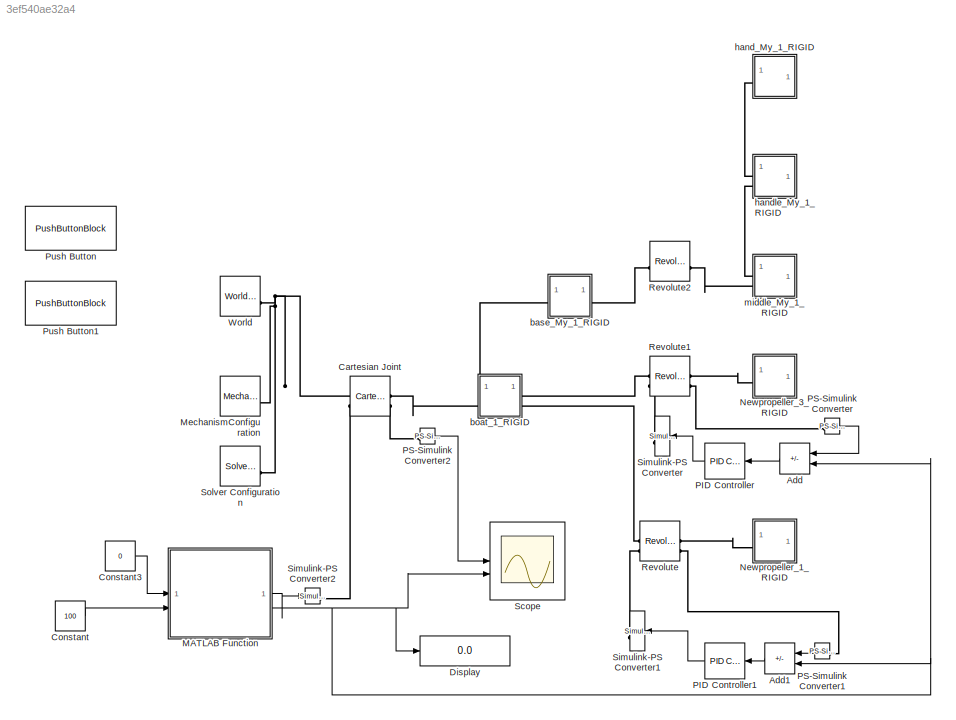
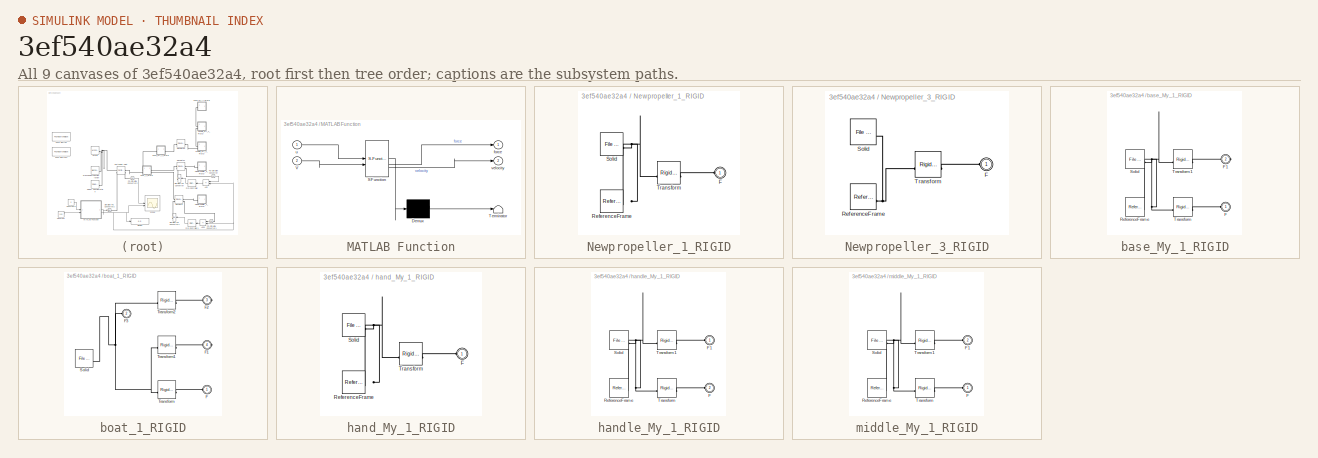
[diagram: thumbnail index - all 9 canvases of the model, root first then tree order]
MODEL slx_3ef540ae32a4
KIND model
CONFIG AbsTol = auto
CONFIG EnableMultiTasking = off
CONFIG FixedStep = auto
CONFIG MaxStep = auto
CONFIG MinStep = auto
CONFIG RelTol = 1e-3
CONFIG SampleTimeConstraint = Unconstrained
CONFIG SolverName = ode23tb
CONFIG StartTime = 0.0
CONFIG StopTime = inf
WORKSPACE source: external: MATLAB File  (data not in archive)
BLOCK [Sum] Add
  IconShape = rectangular
  Inputs = -+
BLOCK [Sum] Add1
  IconShape = rectangular
  Inputs = -+
BLOCK [Reference] Cartesian Joint  REF=sm_lib/Joints/Cartesian
Joint
  SourceBlock = sm_lib/Joints/Cartesian\nJoint
  SourceType = Cartesian\nJoint
BLOCK [Constant] Constant
  Value = 100
BLOCK [Constant] Constant3
  Value = 0
BLOCK [Display] Display
  Decimation = 1
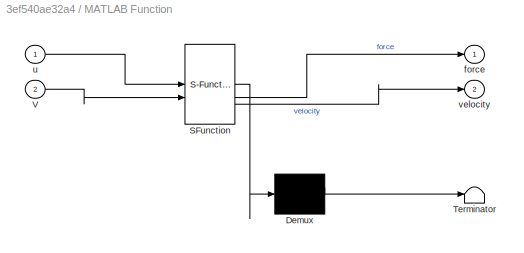
BLOCK [SubSystem] MATLAB Function
  ErrorFcn = Stateflow.Translate.translate
  LibrarySourceBlock = simulink/User-Defined\nFunctions/MATLAB Function
  PermitHierarchicalResolution = ExplicitOnly
  SFBlockType = MATLAB Function
  TreatAsAtomicUnit = on
BLOCK [Demux] MATLAB Function/ Demux 
  Outputs = 1
BLOCK [S-Function] MATLAB Function/ SFunction 
  EnableBusSupport = on
  FunctionName = sf_sfun
  PortCounts = [2 3]
  SFcnIsStateOwnerBlock = off
  SFunctionDeploymentMode = off
  Tag = Stateflow S-Function 2
BLOCK [Terminator] MATLAB Function/ Terminator 
BLOCK [Inport] MATLAB Function/V
  Port = 2
BLOCK [Outport] MATLAB Function/force
BLOCK [Inport] MATLAB Function/u
BLOCK [Outport] MATLAB Function/velocity
  Port = 2
BLOCK [Reference] MechanismConfiguration  REF=sm_lib/Utilities/Mechanism
Configuration
  SourceBlock = sm_lib/Utilities/Mechanism\nConfiguration
  SourceType = Mechanism\nConfiguration
BLOCK [SubSystem] Newpropeller_1_RIGID
BLOCK [PMIOPort] Newpropeller_1_RIGID/F
  Side = Left
BLOCK [Reference] Newpropeller_1_RIGID/ReferenceFrame  REF=sm_lib/Frames and
Transforms/Reference
Frame
  SourceBlock = sm_lib/Frames and\nTransforms/Reference\nFrame
  SourceType = Reference\nFrame
BLOCK [Reference] Newpropeller_1_RIGID/Solid  REF=sm_lib/Body Elements/File Solid
  SourceBlock = sm_lib/Body Elements/File Solid
  SourceType = File Solid
BLOCK [Reference] Newpropeller_1_RIGID/Transform  REF=sm_lib/Frames and
Transforms/Rigid
Transform
  SourceBlock = sm_lib/Frames and\nTransforms/Rigid\nTransform
  SourceType = Rigid\nTransform
BLOCK [SubSystem] Newpropeller_3_RIGID
BLOCK [PMIOPort] Newpropeller_3_RIGID/F
  Side = Left
BLOCK [Reference] Newpropeller_3_RIGID/ReferenceFrame  REF=sm_lib/Frames and
Transforms/Reference
Frame
  SourceBlock = sm_lib/Frames and\nTransforms/Reference\nFrame
  SourceType = Reference\nFrame
BLOCK [Reference] Newpropeller_3_RIGID/Solid  REF=sm_lib/Body Elements/File Solid
  SourceBlock = sm_lib/Body Elements/File Solid
  SourceType = File Solid
BLOCK [Reference] Newpropeller_3_RIGID/Transform  REF=sm_lib/Frames and
Transforms/Rigid
Transform
  SourceBlock = sm_lib/Frames and\nTransforms/Rigid\nTransform
  SourceType = Rigid\nTransform
BLOCK [Reference] PID Controller  REF=slpidlib/PID Controller
  LibrarySourceBlock = simulink/Continuous/PID Controller
  SourceBlock = slpidlib/PID Controller
  SourceType = PID 1dof
BLOCK [Reference] PID Controller1  REF=slpidlib/PID Controller
  LibrarySourceBlock = simulink/Continuous/PID Controller
  SourceBlock = slpidlib/PID Controller
  SourceType = PID 1dof
BLOCK [Reference] PS-Simulink Converter  REF=nesl_utility/PS-Simulink
Converter
  SourceBlock = nesl_utility/PS-Simulink\nConverter
  SourceType = PS-Simulink\nConverter
BLOCK [Reference] PS-Simulink Converter1  REF=nesl_utility/PS-Simulink
Converter
  SourceBlock = nesl_utility/PS-Simulink\nConverter
  SourceType = PS-Simulink\nConverter
BLOCK [Reference] PS-Simulink Converter2  REF=nesl_utility/PS-Simulink
Converter
  SourceBlock = nesl_utility/PS-Simulink\nConverter
  SourceType = PS-Simulink\nConverter
BLOCK [PushButtonBlock] Push Button
  ButtonText = front
  ButtonType = Latch
  OffValue = 1.000000
  OnValue = -1
BLOCK [PushButtonBlock] Push Button1
  ButtonText = back
  ButtonType = Latch
  OffValue = 1.000000
BLOCK [Reference] Revolute  REF=sm_lib/Joints/Revolute Joint
  SourceBlock = sm_lib/Joints/Revolute Joint
  SourceType = Revolute Joint
BLOCK [Reference] Revolute1  REF=sm_lib/Joints/Revolute Joint
  SourceBlock = sm_lib/Joints/Revolute Joint
  SourceType = Revolute Joint
BLOCK [Reference] Revolute2  REF=sm_lib/Joints/Revolute Joint
  SourceBlock = sm_lib/Joints/Revolute Joint
  SourceType = Revolute Joint
BLOCK [Scope] Scope
  Floating = off
  NumInputPorts = 2
  ScopeSpecificationString = Simulink.scopes.TimeScopeBlockCfg('CurrentConfiguration', extmgr.ConfigurationSet(extmgr.Configuration('Core','General UI',true),extmgr.Configuration('Core','Source UI',true),extmgr.Configuration('Sources','WiredSimulink',true),extmgr.Configuration('Visuals','Time Domain',true,'SerializedDisplays',{struct('MinYLimReal','-125.0267','MaxYLimReal','125.02301','YLabelReal','','MinYLimMag',' 0.00000','...<+1448ch>
BLOCK [Reference] Simulink-PS Converter  REF=nesl_utility/Simulink-PS
Converter
  SourceBlock = nesl_utility/Simulink-PS\nConverter
  SourceType = Simulink-PS\nConverter
BLOCK [Reference] Simulink-PS Converter1  REF=nesl_utility/Simulink-PS
Converter
  SourceBlock = nesl_utility/Simulink-PS\nConverter
  SourceType = Simulink-PS\nConverter
BLOCK [Reference] Simulink-PS Converter2  REF=nesl_utility/Simulink-PS
Converter
  SourceBlock = nesl_utility/Simulink-PS\nConverter
  SourceType = Simulink-PS\nConverter
BLOCK [Reference] Solver Configuration  REF=nesl_utility/Solver
Configuration
  SourceBlock = nesl_utility/Solver\nConfiguration
  SourceType = Solver\nConfiguration
BLOCK [Reference] World  REF=sm_lib/Frames and
Transforms/World Frame
  SourceBlock = sm_lib/Frames and\nTransforms/World Frame
  SourceType = World Frame
BLOCK [SubSystem] base_My_1_RIGID
BLOCK [PMIOPort] base_My_1_RIGID/F
  Side = Left
BLOCK [PMIOPort] base_My_1_RIGID/F1
  Port = 2
  Side = Right
BLOCK [Reference] base_My_1_RIGID/ReferenceFrame  REF=sm_lib/Frames and
Transforms/Reference
Frame
  SourceBlock = sm_lib/Frames and\nTransforms/Reference\nFrame
  SourceType = Reference\nFrame
BLOCK [Reference] base_My_1_RIGID/Solid  REF=sm_lib/Body Elements/File Solid
  SourceBlock = sm_lib/Body Elements/File Solid
  SourceType = File Solid
BLOCK [Reference] base_My_1_RIGID/Transform  REF=sm_lib/Frames and
Transforms/Rigid
Transform
  SourceBlock = sm_lib/Frames and\nTransforms/Rigid\nTransform
  SourceType = Rigid\nTransform
BLOCK [Reference] base_My_1_RIGID/Transform1  REF=sm_lib/Frames and
Transforms/Rigid
Transform
  SourceBlock = sm_lib/Frames and\nTransforms/Rigid\nTransform
  SourceType = Rigid\nTransform
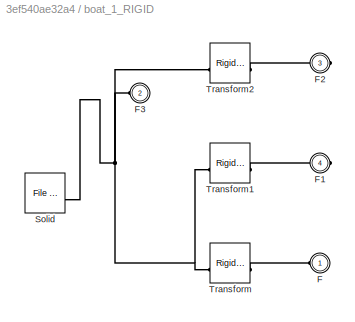
BLOCK [SubSystem] boat_1_RIGID
BLOCK [PMIOPort] boat_1_RIGID/F
  Side = Left
BLOCK [PMIOPort] boat_1_RIGID/F1
  Port = 4
  Side = Right
BLOCK [PMIOPort] boat_1_RIGID/F2
  Port = 3
  Side = Right
BLOCK [PMIOPort] boat_1_RIGID/F3
  Port = 2
  Side = Left
BLOCK [Reference] boat_1_RIGID/Solid  REF=sm_lib/Body Elements/File Solid
  SourceBlock = sm_lib/Body Elements/File Solid
  SourceType = File Solid
BLOCK [Reference] boat_1_RIGID/Transform  REF=sm_lib/Frames and
Transforms/Rigid
Transform
  SourceBlock = sm_lib/Frames and\nTransforms/Rigid\nTransform
  SourceType = Rigid\nTransform
BLOCK [Reference] boat_1_RIGID/Transform1  REF=sm_lib/Frames and
Transforms/Rigid
Transform
  SourceBlock = sm_lib/Frames and\nTransforms/Rigid\nTransform
  SourceType = Rigid\nTransform
BLOCK [Reference] boat_1_RIGID/Transform2  REF=sm_lib/Frames and
Transforms/Rigid
Transform
  SourceBlock = sm_lib/Frames and\nTransforms/Rigid\nTransform
  SourceType = Rigid\nTransform
BLOCK [SubSystem] hand_My_1_RIGID
BLOCK [PMIOPort] hand_My_1_RIGID/F
  Side = Left
BLOCK [Reference] hand_My_1_RIGID/ReferenceFrame  REF=sm_lib/Frames and
Transforms/Reference
Frame
  SourceBlock = sm_lib/Frames and\nTransforms/Reference\nFrame
  SourceType = Reference\nFrame
BLOCK [Reference] hand_My_1_RIGID/Solid  REF=sm_lib/Body Elements/File Solid
  SourceBlock = sm_lib/Body Elements/File Solid
  SourceType = File Solid
BLOCK [Reference] hand_My_1_RIGID/Transform  REF=sm_lib/Frames and
Transforms/Rigid
Transform
  SourceBlock = sm_lib/Frames and\nTransforms/Rigid\nTransform
  SourceType = Rigid\nTransform
BLOCK [SubSystem] handle_My_1_RIGID
BLOCK [PMIOPort] handle_My_1_RIGID/F
  Port = 2
  Side = Left
BLOCK [PMIOPort] handle_My_1_RIGID/F1
  Side = Left
BLOCK [Reference] handle_My_1_RIGID/ReferenceFrame  REF=sm_lib/Frames and
Transforms/Reference
Frame
  SourceBlock = sm_lib/Frames and\nTransforms/Reference\nFrame
  SourceType = Reference\nFrame
BLOCK [Reference] handle_My_1_RIGID/Solid  REF=sm_lib/Body Elements/File Solid
  SourceBlock = sm_lib/Body Elements/File Solid
  SourceType = File Solid
BLOCK [Reference] handle_My_1_RIGID/Transform  REF=sm_lib/Frames and
Transforms/Rigid
Transform
  SourceBlock = sm_lib/Frames and\nTransforms/Rigid\nTransform
  SourceType = Rigid\nTransform
BLOCK [Reference] handle_My_1_RIGID/Transform1  REF=sm_lib/Frames and
Transforms/Rigid
Transform
  SourceBlock = sm_lib/Frames and\nTransforms/Rigid\nTransform
  SourceType = Rigid\nTransform
BLOCK [SubSystem] middle_My_1_RIGID
BLOCK [PMIOPort] middle_My_1_RIGID/F
  Side = Left
BLOCK [PMIOPort] middle_My_1_RIGID/F1
  Port = 2
  Side = Left
BLOCK [Reference] middle_My_1_RIGID/ReferenceFrame  REF=sm_lib/Frames and
Transforms/Reference
Frame
  SourceBlock = sm_lib/Frames and\nTransforms/Reference\nFrame
  SourceType = Reference\nFrame
BLOCK [Reference] middle_My_1_RIGID/Solid  REF=sm_lib/Body Elements/File Solid
  SourceBlock = sm_lib/Body Elements/File Solid
  SourceType = File Solid
BLOCK [Reference] middle_My_1_RIGID/Transform  REF=sm_lib/Frames and
Transforms/Rigid
Transform
  SourceBlock = sm_lib/Frames and\nTransforms/Rigid\nTransform
  SourceType = Rigid\nTransform
BLOCK [Reference] middle_My_1_RIGID/Transform1  REF=sm_lib/Frames and
Transforms/Rigid
Transform
  SourceBlock = sm_lib/Frames and\nTransforms/Rigid\nTransform
  SourceType = Rigid\nTransform
LINE Add1:1 -> PID Controller1:1
LINE Add:1 -> PID Controller:1
LINE Constant3:1 -> MATLAB Function:1
LINE Constant:1 -> MATLAB Function:2
LINE MATLAB Function:1 -> Simulink-PS Converter2:1
NET MATLAB Function:2 -> Add1:2, Add:2, Display:1, Scope:2
LINE PID Controller1:1 -> Simulink-PS Converter1:1
LINE PID Controller:1 -> Simulink-PS Converter:1
LINE PS-Simulink Converter1:1 -> Add1:1
LINE PS-Simulink Converter2:1 -> Scope:1
LINE PS-Simulink Converter:1 -> Add:1
PNET net1: Cartesian Joint:LConn1 -- MechanismConfiguration:RConn1 -- Solver Configuration:RConn1 -- World:RConn1
PLINE Cartesian Joint:LConn2 -- Simulink-PS Converter2:RConn1
PLINE Cartesian Joint:RConn1 -- boat_1_RIGID:LConn2
PLINE Cartesian Joint:RConn2 -- PS-Simulink Converter2:LConn1
PLINE Newpropeller_1_RIGID/F:RConn1 -- Newpropeller_1_RIGID/Transform:RConn1
PNET net2: Newpropeller_1_RIGID/ReferenceFrame:RConn1 -- Newpropeller_1_RIGID/Solid:RConn1 -- Newpropeller_1_RIGID/Transform:LConn1
PLINE Newpropeller_1_RIGID:LConn1 -- Revolute:RConn1
PLINE Newpropeller_3_RIGID/F:RConn1 -- Newpropeller_3_RIGID/Transform:RConn1
PNET net3: Newpropeller_3_RIGID/ReferenceFrame:RConn1 -- Newpropeller_3_RIGID/Solid:LConn1 -- Newpropeller_3_RIGID/Transform:LConn1
PLINE Newpropeller_3_RIGID:LConn1 -- Revolute1:RConn1
PLINE PS-Simulink Converter1:LConn1 -- Revolute:RConn2
PLINE PS-Simulink Converter:LConn1 -- Revolute1:RConn2
PLINE Revolute1:LConn1 -- boat_1_RIGID:RConn1
PLINE Revolute1:LConn2 -- Simulink-PS Converter:RConn1
PLINE Revolute2:LConn1 -- base_My_1_RIGID:RConn1
PLINE Revolute2:RConn1 -- middle_My_1_RIGID:LConn2
PLINE Revolute:LConn1 -- boat_1_RIGID:RConn2
PLINE Revolute:LConn2 -- Simulink-PS Converter1:RConn1
PLINE base_My_1_RIGID/F1:RConn1 -- base_My_1_RIGID/Transform1:RConn1
PLINE base_My_1_RIGID/F:RConn1 -- base_My_1_RIGID/Transform:RConn1
PNET net4: base_My_1_RIGID/ReferenceFrame:RConn1 -- base_My_1_RIGID/Solid:RConn1 -- base_My_1_RIGID/Transform1:LConn1 -- base_My_1_RIGID/Transform:LConn1
PLINE base_My_1_RIGID:LConn1 -- boat_1_RIGID:LConn1
PLINE boat_1_RIGID/F1:RConn1 -- boat_1_RIGID/Transform1:RConn1
PLINE boat_1_RIGID/F2:RConn1 -- boat_1_RIGID/Transform2:RConn1
PNET net5: boat_1_RIGID/F3:RConn1 -- boat_1_RIGID/Solid:RConn1 -- boat_1_RIGID/Transform1:LConn1 -- boat_1_RIGID/Transform2:LConn1 -- boat_1_RIGID/Transform:LConn1
PLINE boat_1_RIGID/F:RConn1 -- boat_1_RIGID/Transform:RConn1
PLINE hand_My_1_RIGID/F:RConn1 -- hand_My_1_RIGID/Transform:RConn1
PNET net6: hand_My_1_RIGID/ReferenceFrame:RConn1 -- hand_My_1_RIGID/Solid:RConn1 -- hand_My_1_RIGID/Transform:LConn1
PLINE hand_My_1_RIGID:LConn1 -- handle_My_1_RIGID:LConn1
PLINE handle_My_1_RIGID/F1:RConn1 -- handle_My_1_RIGID/Transform1:RConn1
PLINE handle_My_1_RIGID/F:RConn1 -- handle_My_1_RIGID/Transform:RConn1
PNET net7: handle_My_1_RIGID/ReferenceFrame:RConn1 -- handle_My_1_RIGID/Solid:RConn1 -- handle_My_1_RIGID/Transform1:LConn1 -- handle_My_1_RIGID/Transform:LConn1
PLINE handle_My_1_RIGID:LConn2 -- middle_My_1_RIGID:LConn1
PLINE middle_My_1_RIGID/F1:RConn1 -- middle_My_1_RIGID/Transform1:RConn1
PLINE middle_My_1_RIGID/F:RConn1 -- middle_My_1_RIGID/Transform:RConn1
PNET net8: middle_My_1_RIGID/ReferenceFrame:RConn1 -- middle_My_1_RIGID/Solid:RConn1 -- middle_My_1_RIGID/Transform1:LConn1 -- middle_My_1_RIGID/Transform:LConn1
note: NET lines group one-source signal fan-out (src -> all destinations, sorted); 1:1 wires keep LINE; PNET lines group multi-terminal physical nets as a canonical sorted terminal list (undirected conserving connections); 2-terminal nets keep the pairwise PLINE form
CHART MATLAB Function states=1 transitions=1
  STATE_LABEL 'eML_blk_kernel()'
  STATE_LABEL 'SCRIPT:\nfunction [force,velocity]= fcn(u,V)\n\nK= 0.001\n\nif u==1\n    force = K*(V^2);\n    velocity = V;\nelseif u==-1\n    force = -K*(V^2);\n     velocity = -V;\nelse\n    force=0;\n    velocity = 0;\n\nend'
CHART  states=0 transitions=0
